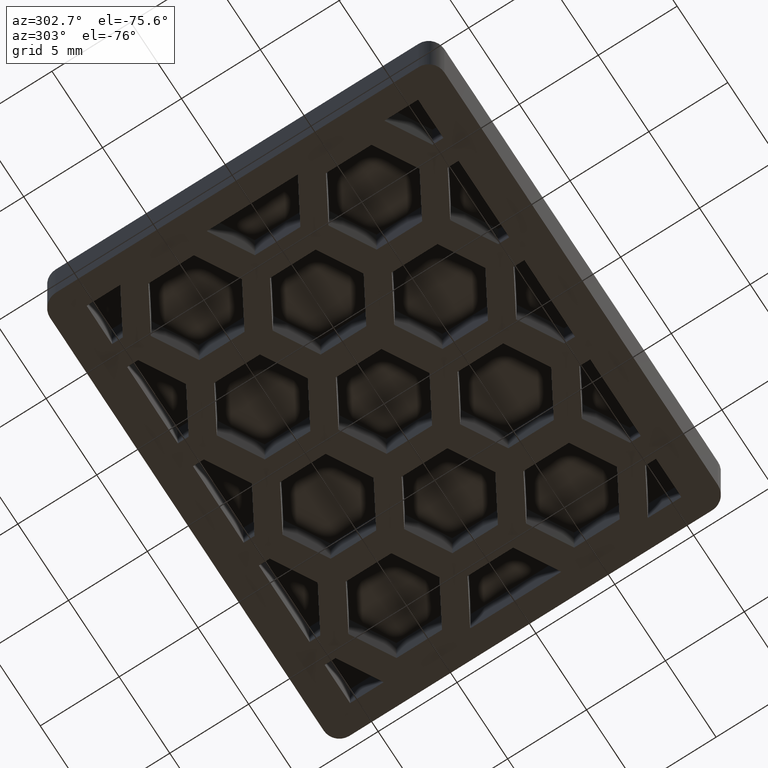
[diagram: clean part render]
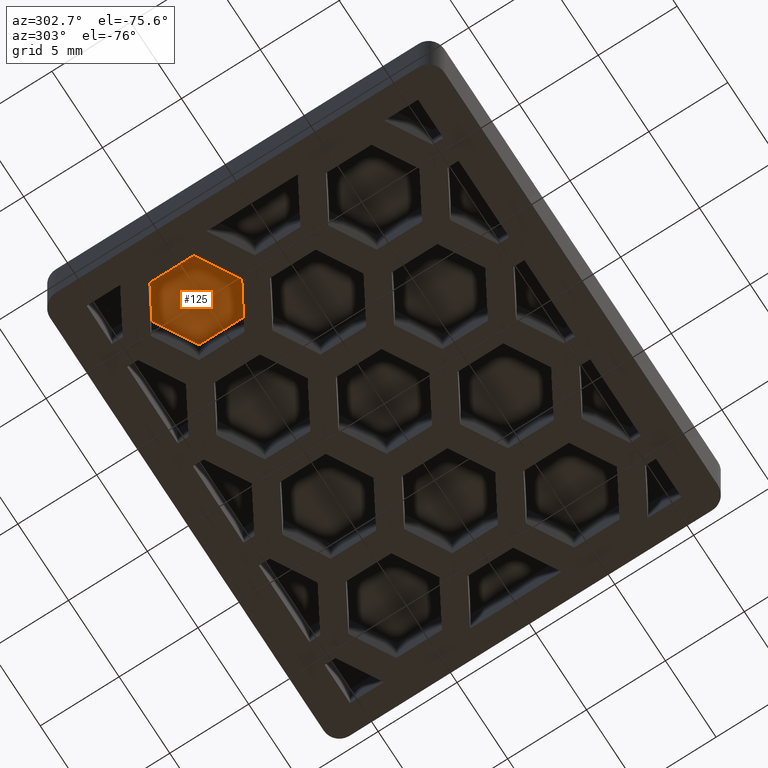
[diagram: same view with one face highlighted and labeled with its STEP entity id]
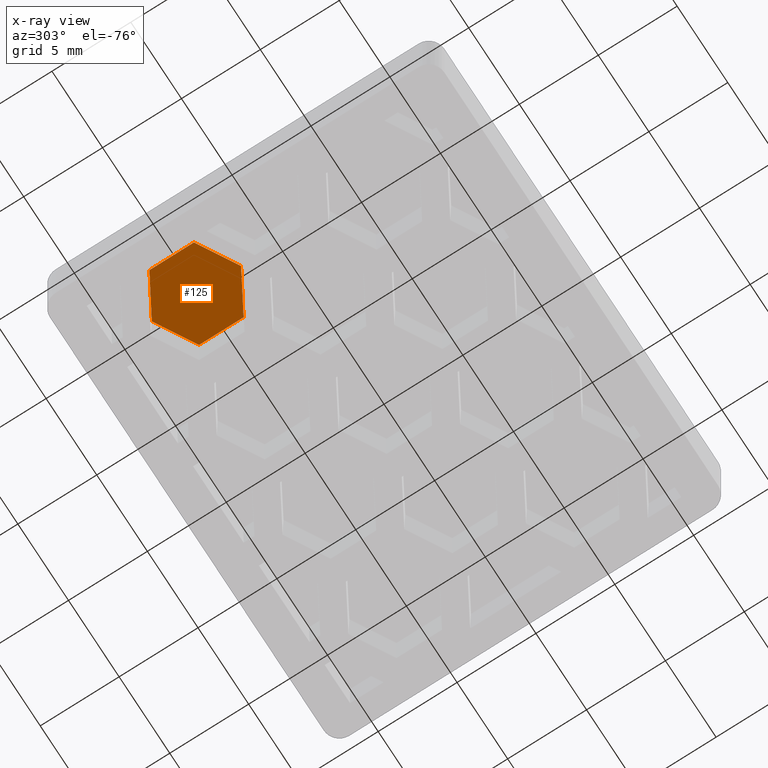
[diagram: x-ray of the same camera — body ghosted, the highlighted face saturated]
A machine part, auxiliary view. The second image highlights one B-rep face of the part: STEP entity #125.
The next image is the same camera in x-ray: the body ghosted, the highlighted face saturated — about 0% of this face is hidden behind the body in this view.
In plain terms, the highlighted planar face has unit normal (0, -0, -1).
Its self-contained STEP definition (entity closure, byte-faithful):
#125 = ADVANCED_FACE( '', ( #400 ), #401, .T. );
#400 = FACE_OUTER_BOUND( '', #816, .T. );
#401 = PLANE( '', #817 );
#816 = EDGE_LOOP( '', ( #1627, #1628, #1629, #1630, #1631, #1632 ) );
#817 = AXIS2_PLACEMENT_3D( '', #1633, #1634, #1635 );
#1627 = ORIENTED_EDGE( '', *, *, #2941, .F. );
#1628 = ORIENTED_EDGE( '', *, *, #2942, .F. );
#1629 = ORIENTED_EDGE( '', *, *, #2943, .F. );
#1630 = ORIENTED_EDGE( '', *, *, #2944, .F. );
#1631 = ORIENTED_EDGE( '', *, *, #2945, .F. );
#1632 = ORIENTED_EDGE( '', *, *, #2946, .F. );
#1633 = CARTESIAN_POINT( '', ( 25.5000000000000, -1.36940968547411E-014, 2.99999999999998 ) );
#1634 = DIRECTION( '', ( 0.000000000000000, -6.12303176911189E-017, -1.00000000000000 ) );
#1635 = DIRECTION( '', ( 0.000000000000000, -1.00000000000000, 6.12303176911189E-017 ) );
#2941 = EDGE_CURVE( '', #3692, #3693, #3694, .F. );
#2942 = EDGE_CURVE( '', #3695, #3692, #3696, .F. );
#2943 = EDGE_CURVE( '', #3697, #3695, #3698, .F. );
#2944 = EDGE_CURVE( '', #3699, #3697, #3700, .F. );
#2945 = EDGE_CURVE( '', #3701, #3699, #3702, .F. );
#2946 = EDGE_CURVE( '', #3693, #3701, #3703, .F. );
#3692 = VERTEX_POINT( '', #4783 );
#3693 = VERTEX_POINT( '', #4784 );
#3694 = LINE( '', #4785, #4786 );
#3695 = VERTEX_POINT( '', #4787 );
#3696 = LINE( '', #4788, #4789 );
#3697 = VERTEX_POINT( '', #4790 );
#3698 = LINE( '', #4791, #4792 );
#3699 = VERTEX_POINT( '', #4793 );
#3700 = LINE( '', #4794, #4795 );
#3701 = VERTEX_POINT( '', #4796 );
#3702 = LINE( '', #4797, #4798 );
#3703 = LINE( '', #4799, #4800 );
#4783 = CARTESIAN_POINT( '', ( -7.30236519478465, 4.21602251092987, 2.99999999999998 ) );
#4784 = CARTESIAN_POINT( '', ( -7.30236519478466, 7.04230773826783, 2.99999999999998 ) );
#4785 = CARTESIAN_POINT( '', ( -7.30236519478465, 10.4999999999999, 3.00000000000000 ) );
#4786 = VECTOR( '', #5509, 1000.00000000000 );
#4787 = CARTESIAN_POINT( '', ( -9.75000000000000, 2.80287989726090, 2.99999999999998 ) );
#4788 = CARTESIAN_POINT( '', ( -10.3545492275240, 2.45384323801153, 3.00000000000000 ) );
#4789 = VECTOR( '', #5510, 1000.00000000000 );
#4790 = CARTESIAN_POINT( '', ( -12.1976348052153, 4.21602251092987, 2.99999999999998 ) );
#4791 = CARTESIAN_POINT( '', ( -17.0204507724758, 7.00047660787973, 3.00000000000000 ) );
#4792 = VECTOR( '', #5511, 1000.00000000000 );
#4793 = CARTESIAN_POINT( '', ( -12.1976348052154, 7.04230773826783, 2.99999999999998 ) );
#4794 = CARTESIAN_POINT( '', ( -12.1976348052153, 10.4999999999999, 3.00000000000000 ) );
#4795 = VECTOR( '', #5512, 1000.00000000000 );
#4796 = CARTESIAN_POINT( '', ( -9.75000000000000, 8.45545035193681, 3.00000000000000 ) );
#4797 = CARTESIAN_POINT( '', ( -12.8021840327393, 6.69327107901847, 3.00000000000000 ) );
#4798 = VECTOR( '', #5513, 1000.00000000000 );
#4799 = CARTESIAN_POINT( '', ( -14.5728159672605, 11.2399044488867, 2.99999999999999 ) );
#4800 = VECTOR( '', #5514, 1000.00000000000 );
#5509 = DIRECTION( '', ( -4.44089209850063E-016, -1.00000000000000, 6.12303176911189E-017 ) );
#5510 = DIRECTION( '', ( -0.866025403784439, -0.500000000000000, 3.06151588455594E-017 ) );
#5511 = DIRECTION( '', ( -0.866025403784439, 0.500000000000000, -3.06151588455594E-017 ) );
#5512 = DIRECTION( '', ( -2.77555756156289E-016, 1.00000000000000, -6.12303176911189E-017 ) );
#5513 = DIRECTION( '', ( 0.866025403784438, 0.500000000000000, -3.06151588455595E-017 ) );
#5514 = DIRECTION( '', ( 0.866025403784439, -0.500000000000000, 3.06151588455594E-017 ) );